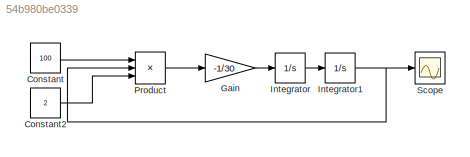
MODEL slx_54b980be0339
KIND model
CONFIG AbsTol = auto
CONFIG EnableMultiTasking = off
CONFIG FixedStep = auto
CONFIG MaxStep = auto
CONFIG MinStep = auto
CONFIG RelTol = 1e-3
CONFIG SampleTimeConstraint = Unconstrained
CONFIG SolverName = VariableStepAuto
CONFIG StartTime = 0.0
CONFIG StopTime = 10.0
BLOCK [Constant] Constant
  Value = 100
BLOCK [Constant] Constant2
  Value = 2
BLOCK [Gain] Gain
  Gain = -1/30
BLOCK [Integrator] Integrator
  InitialCondition = 2
BLOCK [Integrator] Integrator1
BLOCK [Product] Product
  Inputs = 3
BLOCK [Scope] Scope
  ActiveDisplayYMaximum = 0.96805715405172021
  ActiveDisplayYMinimum = -0.96759548321980859
  Floating = off
  GraphicalSettings = {"Style":{"BackgroundColor":[0.12941176470588237,0.12941176470588237,0.12941176470588237],"AxesColor":[0.07058823529411765,0.07058823529411765,0.07058823529411765],"LabelsColor":[0.8509803921568627,0.8509803921568627,0.8509803921568627],"PreserveColors":false,"Visible":[true],"LineStyle":["-"],"LineWidth":[1.5],"BarWidth":[0.9],"LineColor":["auto"],"LineFaceAlpha":[1],"LineEdgeAlpha":[1],"Marker":...<+1906ch>
  MultipleDisplayCache = [{"MaxYLimMag":0.96805715405172021,"MaxYLimReal":0.96805715405172021,"MinYLimMag":0,"MinYLimReal":-0.96759548321980859,"PlotAsMagnitudePhase":false,"ShowGrid":true,"ShowLegend":false,"Title":"%<SignalLabel>","YLabel":""}]
  NumInputPorts = 1
  ScopeFrameLocation = window
  WasSavedAsWebScope = on
  WindowPosition = [493.000000,225.000000,550.000000,415.000000,]
LINE Constant2:1 -> Product:3
LINE Constant:1 -> Product:1
LINE Gain:1 -> Integrator:1
NET Integrator1:1 -> Product:2, Scope:1
LINE Integrator:1 -> Integrator1:1
LINE Product:1 -> Gain:1
note: NET lines group one-source signal fan-out (src -> all destinations, sorted); 1:1 wires keep LINE
